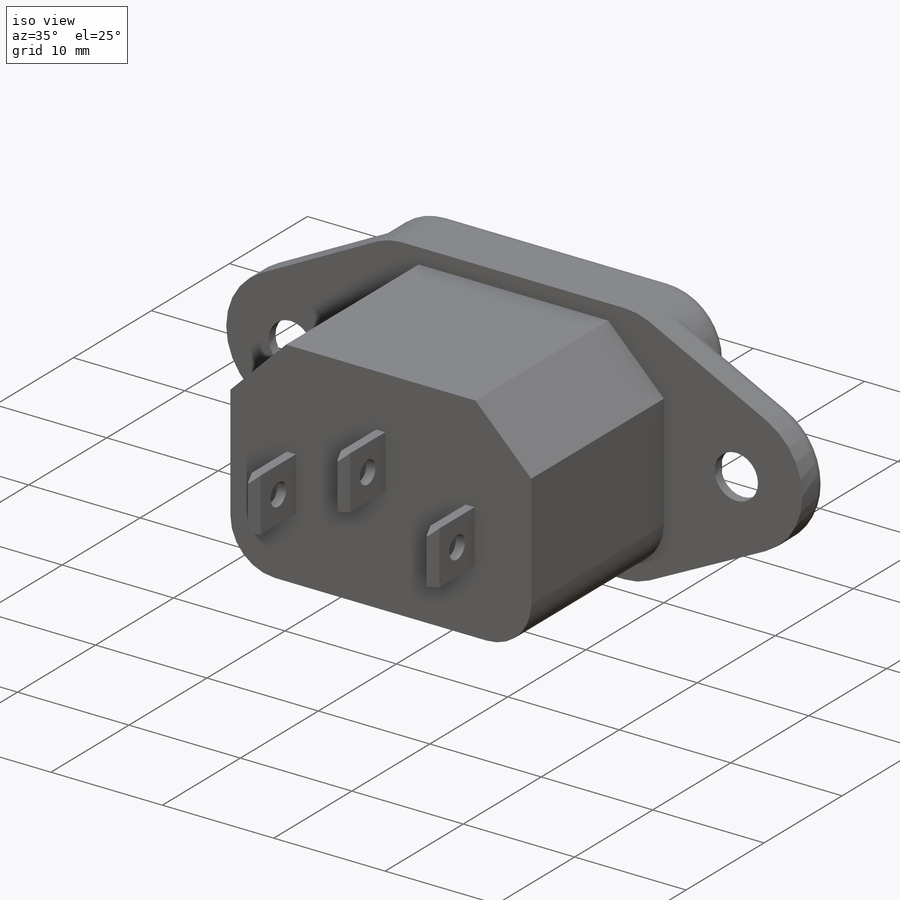
[diagram: iso view]
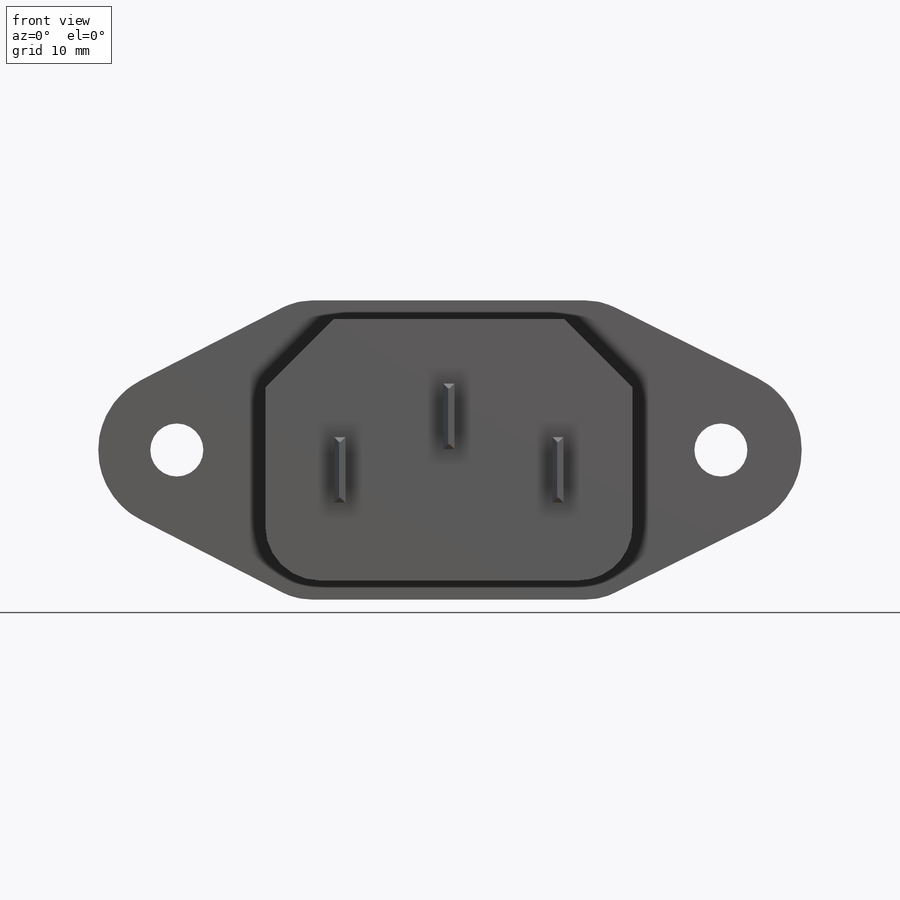
[diagram: front view]
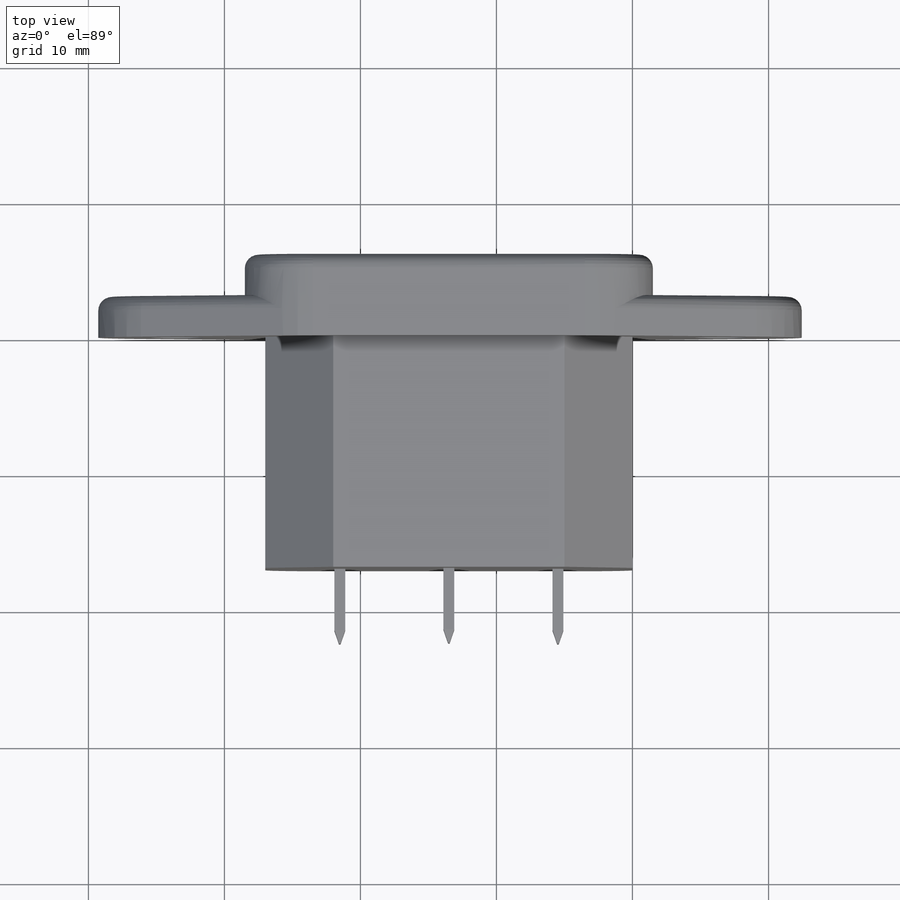
[diagram: top view]
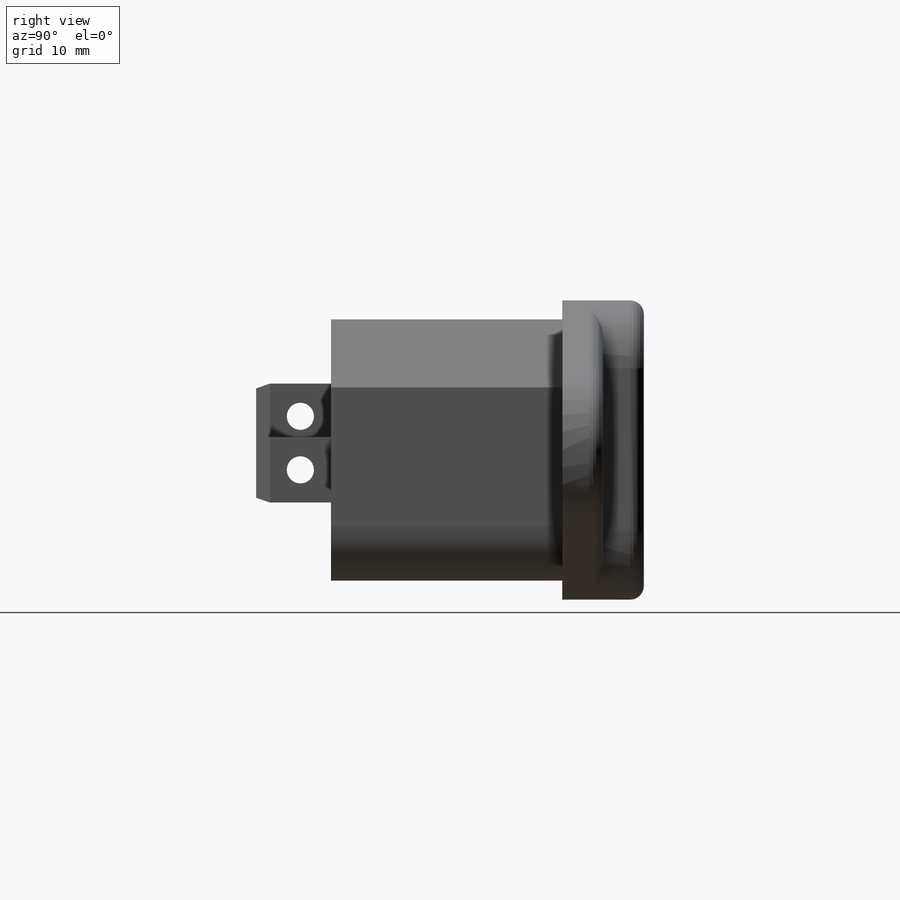
[diagram: right view]
SOLIDWORKS PART (.sldprt)
format: sldprt  version: not decoded by parser v0  size: 517,632 bytes
history: native  units: mm
features: sketch x14, extrude x6, fillet x4, hole x3, cut_extrude x2, material x1 (+12 scaffold rows collapsed)
feature tree (42):
  scaffold x12  (default folders/planes/origin — collapsed)
  material  "Material <not specified>"
  sketch  "Sketch1"  dims[D3=4.0mm D4=4.0mm D1=19.2mm D2=27.0mm]
  extrude  "Boss-Extrude1"  Depth=17mm
  sketch  "Sketch7"  dims[D1=22.0mm D2=30.0mm]
  extrude  "Boss-Extrude5"  Depth=6mm
  fillet  "Fillet13"  Radius=5mm
  sketch  "Sketch8"  dims[c1.D3=2.0mm c1.D4=2.0mm c1.D1=24.0mm c1.D2=16.0mm c2.D3=24.0mm c2.D5=5.0mm c2.D6=5.0mm]
  cut_extrude  "Cut-Extrude1"  Depth=16mm
  sketch  "Sketch9"  dims[c1.D1=~4.010019mm c1.D2=~1.013316mm c2.D1=40.0mm c2.D2=~40.043326mm c3.D1=40.0mm]
  extrude  "Boss-Extrude6"  Depth=3mm
  hole  "CSK for M3.5 Flat Head Machine Screw1"  Diameter=3.9mm Depth=3mm
  sketch  "Sketch11"  dims[D1=40.0mm]
  sketch  "Sketch10"  dims[hole-wizard template sketch: 54 standard entries collapsed; hole parameters kept: c17.Thru Hole Dia.=3.9mm c17.Thru Hole Depth=3.0mm c17.Near C'Sink Dia.=8.2mm c17.D4=~3.666174mm c17.Near C'Sink Angle=90.0deg]
  sketch  "Sketch12"  dims[D1=2.54mm D2=5.08mm D3=13.5mm D4=7.0mm D5=10.9359mm]
  extrude  "Boss-Extrude7"  Depth=15mm
  sketch  "Sketch13"
  extrude  "Boss-Extrude8"  Depth=2mm
  sketch  "Sketch14"  dims[D1=0.8mm D2=4.8mm]
  cut_extrude  "Cut-Extrude2"  [1 undecoded]
  hole  "Ø2.0mm Dowel Hole1"  Diameter=2mm Depth=34.362095mm
  sketch  "Sketch16"
  sketch  "Sketch15"  dims[hole-wizard template sketch: 60 standard entries collapsed; hole parameters kept: c18.Thru Hole Depth=~34.362095mm]
  hole  "Ø2.0mm Dowel Hole2"  Diameter=2mm Depth=2.54mm
  sketch  "Sketch18"
  sketch  "Sketch17"  dims[hole-wizard template sketch: 47 standard entries collapsed; hole parameters kept: c15.Hole Depth=2.54mm c15.D3=~14.816244mm c15.Drill Angle=118.0deg]
  sketch  "Sketch20"
  extrude  "Boss-Extrude10"  Depth=1mm
  fillet  "Fillet14"  Radius=1mm
  fillet  "Fillet15"  Radius=1mm
  fillet  "Fillet16"  Radius=1mm
decode coverage: 24 of 29 modeling features carry decoded parameters
note: ~ marks probable driven/reference dimensions
note: 1 parameter value undecoded
note: suppression state not decoded; provenance and decode notes live in map.json
